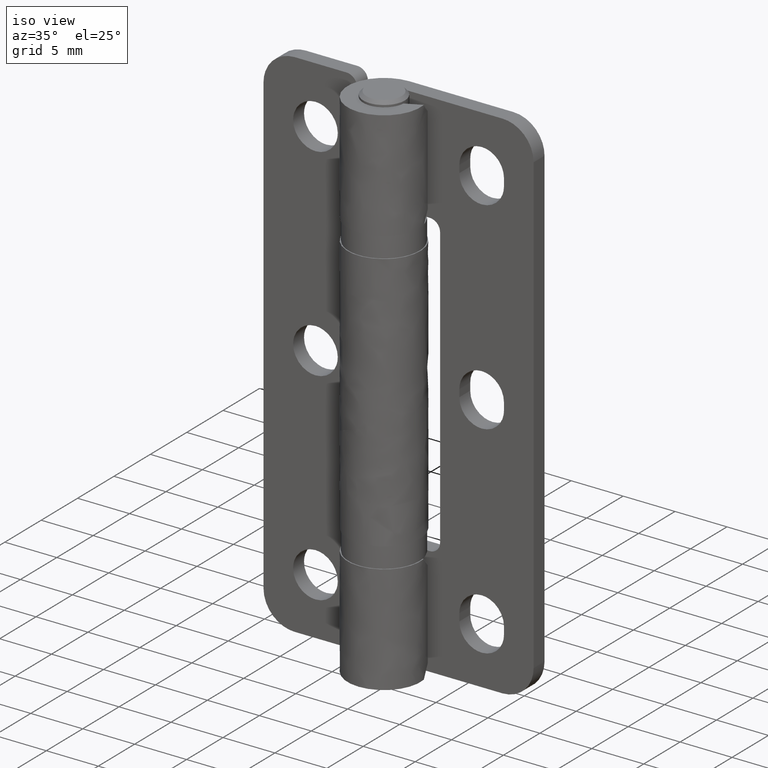
[diagram: clean part render]
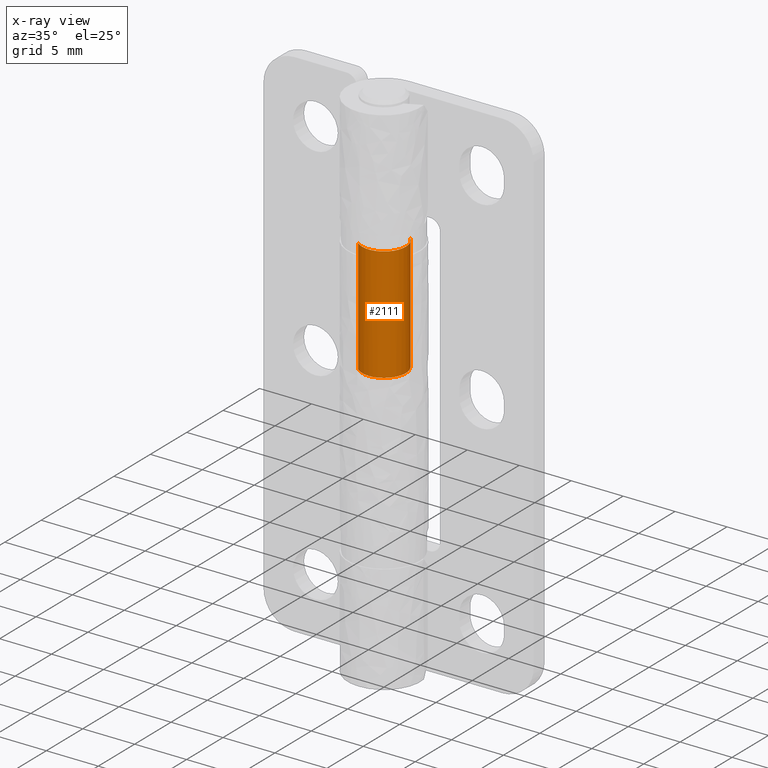
[diagram: x-ray — body ghosted, one internal face saturated and labeled with its STEP entity id]
A machine part, iso view, then the same camera in x-ray: the body is ghosted and one INTERNAL B-rep face — a face not visible from any outside direction — is saturated and labeled: STEP entity #2111.
In plain terms, the highlighted face is a freeform B-spline surface patch.
Its self-contained STEP definition (entity closure, byte-faithful):
#1777=CARTESIAN_POINT('',(1.398914707671615,1.566217818402184,26.500000000000000));
#1778=VERTEX_POINT('',#1777);
#1788=CARTESIAN_POINT('',(2.100000000000000,0.0,26.500000000000000));
#1789=VERTEX_POINT('',#1788);
#1790=CARTESIAN_POINT('',(1.398914707671615,1.566217818402184,26.500000000000000));
#1791=CARTESIAN_POINT('',(1.501922303119383,1.474231467548694,26.499999999999972));
#1792=CARTESIAN_POINT('',(1.708482024211327,1.249413893140399,26.500000000000011));
#1793=CARTESIAN_POINT('',(1.936640721837611,0.856562113050750,26.500000000000011));
#1794=CARTESIAN_POINT('',(2.071749517484233,0.423509928950144,26.500000000000060));
#1795=CARTESIAN_POINT('',(2.100013979995210,0.138101898471230,26.499999999999950));
#1796=CARTESIAN_POINT('',(2.100000000000000,0.0,26.500000000000000));
#1797=B_SPLINE_CURVE_WITH_KNOTS('',3,(#1790,#1791,#1792,#1793,#1794,#1795,#1796),.UNSPECIFIED.,.F.,.U.,(4,1,1,1,4),(0.000000020823075,0.414307062210501,0.911466193150411,1.353405720803184,1.767712762178113),.UNSPECIFIED.);
#1798=EDGE_CURVE('',#1778,#1789,#1797,.T.);
#1800=CARTESIAN_POINT('',(-0.000000588516793,-2.099999999999918,26.500000000000000));
#1801=VERTEX_POINT('',#1800);
#1802=CARTESIAN_POINT('',(2.100000000000000,0.0,26.500000000000000));
#1803=CARTESIAN_POINT('',(2.100084940127825,-0.197589479988087,26.499999999999869));
#1804=CARTESIAN_POINT('',(2.063353927134162,-0.455248026883445,26.500000000000160));
#1805=CARTESIAN_POINT('',(1.931481376948291,-0.846332624708720,26.499999999999840));
#1806=CARTESIAN_POINT('',(1.732549538665558,-1.229986772543461,26.500000000000131));
#1807=CARTESIAN_POINT('',(1.409349369975918,-1.582186305176127,26.500000000000028));
#1808=CARTESIAN_POINT('',(1.004450004660017,-1.859917204151893,26.499999999999599));
#1809=CARTESIAN_POINT('',(0.566924138392583,-2.047486473546664,26.500000000000711));
#1810=CARTESIAN_POINT('',(0.197581816378162,-2.100068037687411,26.499999999999542));
#1811=CARTESIAN_POINT('',(-0.000000588516793,-2.099999999999918,26.500000000000000));
#1812=B_SPLINE_CURVE_WITH_KNOTS('',3,(#1802,#1803,#1804,#1805,#1806,#1807,#1808,#1809,#1810,#1811),.UNSPECIFIED.,.F.,.U.,(4,1,1,1,1,1,1,4),(0.000000069128395,0.592731154878418,0.773130862372889,1.237021514636793,1.881272519008296,2.190533147840144,2.705965502002985,3.298693315743336),.UNSPECIFIED.);
#1813=EDGE_CURVE('',#1789,#1801,#1812,.T.);
#1815=CARTESIAN_POINT('',(-1.398914707671621,-1.566217818402191,26.500000000000000));
#1816=VERTEX_POINT('',#1815);
#1817=CARTESIAN_POINT('',(-0.000000588516793,-2.099999999999918,26.500000000000000));
#1818=CARTESIAN_POINT('',(-0.135555807279002,-2.100014457512228,26.499999999999929));
#1819=CARTESIAN_POINT('',(-0.422608098578903,-2.072117344433302,26.500000000000121));
#1820=CARTESIAN_POINT('',(-0.912729588680975,-1.919540606731971,26.499999999999950));
#1821=CARTESIAN_POINT('',(-1.232472848656605,-1.715056742687037,26.500000000000011));
#1822=CARTESIAN_POINT('',(-1.398914707671621,-1.566217818402191,26.500000000000000));
#1823=B_SPLINE_CURVE_WITH_KNOTS('',3,(#1817,#1818,#1819,#1820,#1821,#1822),.UNSPECIFIED.,.F.,.U.,(4,1,1,4),(0.000000014675921,0.406666720993178,0.861172636768182,1.530980067879441),.UNSPECIFIED.);
#1824=EDGE_CURVE('',#1801,#1816,#1823,.T.);
#2047=CARTESIAN_POINT('',(-1.398914631408736,-1.566217690498533,26.225000000000001));
#2048=CARTESIAN_POINT('',(0.167303059089797,-2.965132321907269,26.224999999999998));
#2049=CARTESIAN_POINT('',(1.566217690498533,-1.398914631408736,26.225000000000001));
#2050=CARTESIAN_POINT('',(2.965132321907269,0.167303059089797,26.224999999999998));
#2051=CARTESIAN_POINT('',(1.398914631408736,1.566217690498533,26.225000000000001));
#2052=CARTESIAN_POINT('',(-1.398914631408736,-1.566217690498533,37.781874999999999));
#2053=CARTESIAN_POINT('',(0.167303059089797,-2.965132321907269,37.781874999999999));
#2054=CARTESIAN_POINT('',(1.566217690498533,-1.398914631408736,37.781874999999999));
#2055=CARTESIAN_POINT('',(2.965132321907269,0.167303059089797,37.781874999999999));
#2056=CARTESIAN_POINT('',(1.398914631408736,1.566217690498533,37.781874999999999));
#2064=(BOUNDED_SURFACE()B_SPLINE_SURFACE(2,1,((#2047,#2052),(#2048,#2053),(#2049,#2054),(#2050,#2055),(#2051,#2056)),.UNSPECIFIED.,.F.,.F.,.U.)B_SPLINE_SURFACE_WITH_KNOTS((3,2,3),(2,2),(0.0,3.479393923933997,6.958787847867995),(0.0,11.556875000000000),.UNSPECIFIED.)GEOMETRIC_REPRESENTATION_ITEM()RATIONAL_B_SPLINE_SURFACE(((1.0,1.0),(0.707106781186548,0.707106781186548),(1.0,1.0),(0.707106781186548,0.707106781186548),(1.0,1.0)))REPRESENTATION_ITEM('')SURFACE());
#2065=CARTESIAN_POINT('',(1.519867800090424,-1.449138319915767,37.500000000000000));
#2066=VERTEX_POINT('',#2065);
#2067=CARTESIAN_POINT('',(-1.398914622432763,-1.566217698515696,37.500000000000618));
#2068=VERTEX_POINT('',#2067);
#2069=CARTESIAN_POINT('',(1.519867800090424,-1.449138319915767,37.500000000000000));
#2070=CARTESIAN_POINT('',(1.380602774285567,-1.595320490427615,37.500000000000227));
#2071=CARTESIAN_POINT('',(1.059456299954773,-1.846985262583905,37.499999999999808));
#2072=CARTESIAN_POINT('',(0.569413013906778,-2.040828903473202,37.500000000000490));
#2073=CARTESIAN_POINT('',(0.051693332392031,-2.118107050996523,37.500000000000533));
#2074=CARTESIAN_POINT('',(-0.414271971764414,-2.080724626349476,37.500000000000107));
#2075=CARTESIAN_POINT('',(-0.942928186257707,-1.901713329687499,37.500000000000867));
#2076=CARTESIAN_POINT('',(-1.242116228012822,-1.706387730038889,37.500000000000568));
#2077=CARTESIAN_POINT('',(-1.398914622432763,-1.566217698515696,37.500000000000618));
#2078=B_SPLINE_CURVE_WITH_KNOTS('',3,(#2069,#2070,#2071,#2072,#2073,#2074,#2075,#2076,#2077),.UNSPECIFIED.,.F.,.U.,(4,1,1,1,1,1,4),(0.000000066586736,0.605684286010159,1.211384909310033,1.564709695542006,2.170381428900496,2.599420961611991,3.230345947494699),.UNSPECIFIED.);
#2079=EDGE_CURVE('',#2066,#2068,#2078,.T.);
#2080=ORIENTED_EDGE('',*,*,#2079,.T.);
#2081=CARTESIAN_POINT('',(-1.398914707671621,-1.566217818402191,26.500000000000000));
#2082=CARTESIAN_POINT('',(-1.398914622432763,-1.566217698515696,37.500000000000618));
#2083=QUASI_UNIFORM_CURVE('',1,(#2081,#2082),.UNSPECIFIED.,.F.,.U.);
#2084=EDGE_CURVE('',#1816,#2068,#2083,.T.);
#2085=ORIENTED_EDGE('',*,*,#2084,.F.);
#2086=ORIENTED_EDGE('',*,*,#1824,.F.);
#2087=ORIENTED_EDGE('',*,*,#1813,.F.);
#2088=ORIENTED_EDGE('',*,*,#1798,.F.);
#2089=CARTESIAN_POINT('',(1.398914592439027,1.566217725305504,37.500000000000277));
#2090=VERTEX_POINT('',#2089);
#2091=CARTESIAN_POINT('',(1.398914707671615,1.566217818402184,26.500000000000000));
#2092=CARTESIAN_POINT('',(1.398914592439027,1.566217725305504,37.500000000000277));
#2093=QUASI_UNIFORM_CURVE('',1,(#2091,#2092),.UNSPECIFIED.,.F.,.U.);
#2094=EDGE_CURVE('',#1778,#2090,#2093,.T.);
#2095=ORIENTED_EDGE('',*,*,#2094,.T.);
#2096=CARTESIAN_POINT('',(1.398914592439027,1.566217725305504,37.500000000000277));
#2097=CARTESIAN_POINT('',(1.516646891263820,1.461104364915998,37.500000000000369));
#2098=CARTESIAN_POINT('',(1.698822285820498,1.257050777283859,37.500000000000220));
#2099=CARTESIAN_POINT('',(1.923070692683563,0.878625514362854,37.500000000000313));
#2100=CARTESIAN_POINT('',(2.062186814818408,0.478250782723678,37.500000000000263));
#2101=CARTESIAN_POINT('',(2.122053904799899,-0.038246511557832,37.500000000000107));
#2102=CARTESIAN_POINT('',(2.050301483366320,-0.565434965753583,37.500000000000391));
#2103=CARTESIAN_POINT('',(1.831403254109823,-1.067738327943512,37.500000000000007));
#2104=CARTESIAN_POINT('',(1.628794900400141,-1.334924504212345,37.500000000000007));
#2105=CARTESIAN_POINT('',(1.519867800090424,-1.449138319915767,37.500000000000000));
#2106=B_SPLINE_CURVE_WITH_KNOTS('',3,(#2096,#2097,#2098,#2099,#2100,#2101,#2102,#2103,#2104,#2105),.UNSPECIFIED.,.F.,.U.,(4,1,1,1,1,1,1,4),(0.000000068370058,0.473479299540185,0.815455128843211,1.315259542400548,1.736117546309048,2.367449966674657,2.893551081949725,3.367040114113729),.UNSPECIFIED.);
#2107=EDGE_CURVE('',#2090,#2066,#2106,.T.);
#2108=ORIENTED_EDGE('',*,*,#2107,.T.);
#2109=EDGE_LOOP('',(#2080,#2085,#2086,#2087,#2088,#2095,#2108));
#2110=FACE_OUTER_BOUND('',#2109,.T.);
#2111=ADVANCED_FACE('',(#2110),#2064,.T.);